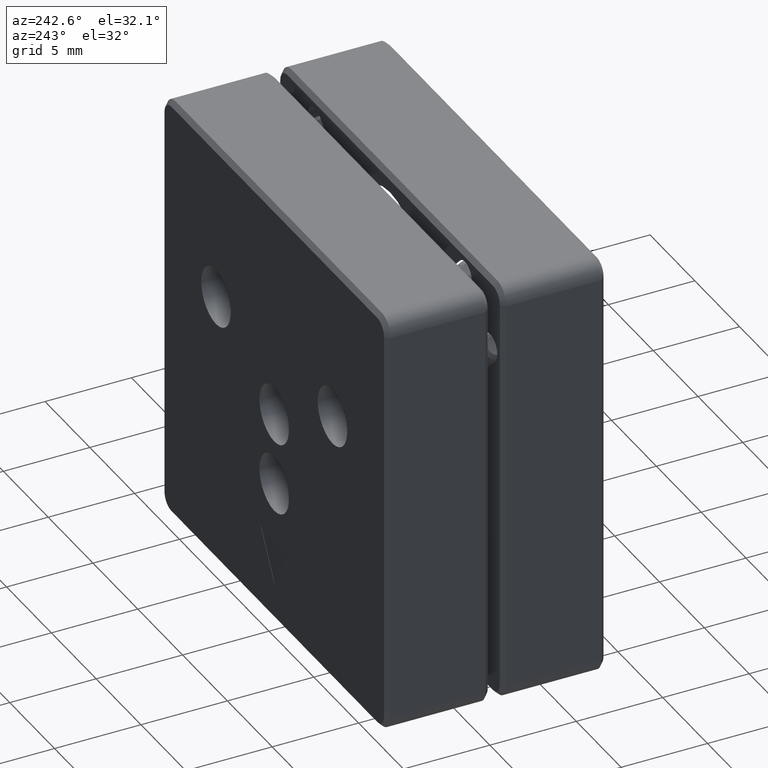
[diagram: clean part render]
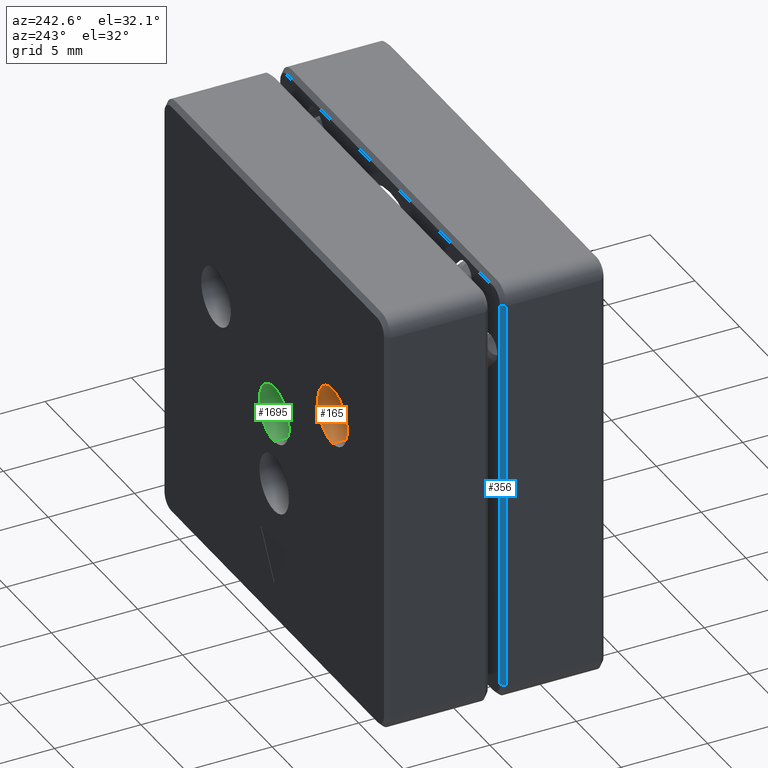
[diagram: same view with three faces highlighted in distinct colors, each labeled with its STEP entity id]
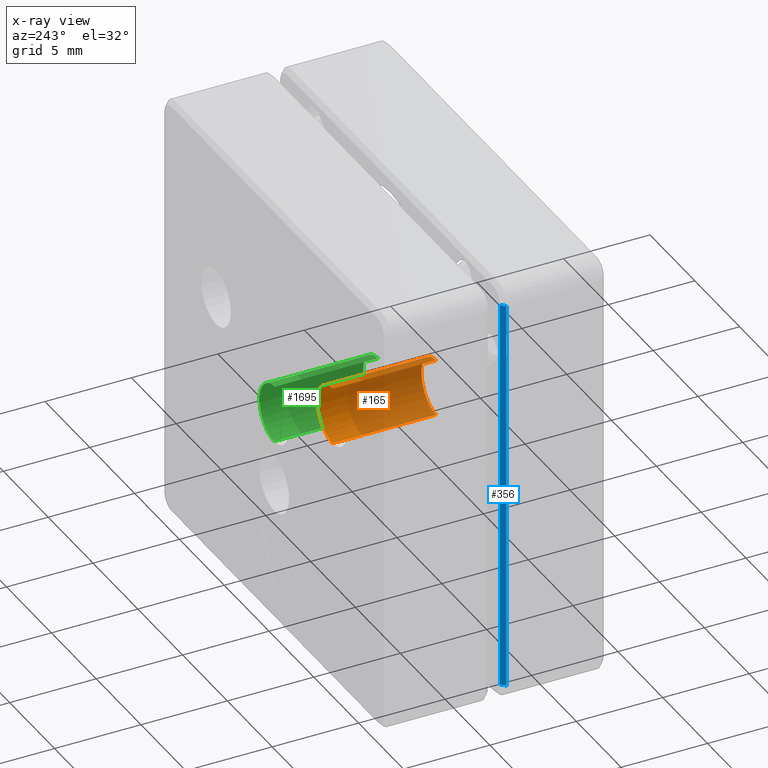
[diagram: x-ray of the same camera — body ghosted, the three highlighted faces saturated]
A machine part, auxiliary view with three faces highlighted in distinct colors.
The next image is the same camera in x-ray (body ghosted, the three faces saturated) — at least one of them is partly hidden behind the body in this view.
Their STEP definitions:

[orange] entity #165 — the highlighted cylindrical surface (edge-blend (fillet) strip) has radius 1.65 mm, axis along (-0, -1, 0).
#88 = ORIENTED_EDGE ( 'NONE', *, *, #2594, .T. ) ;
#165 = ADVANCED_FACE ( 'NONE', ( #2420 ), #1968, .F. ) ;
#211 = CARTESIAN_POINT ( 'NONE',  ( -6.499999999999986677, 3.699958608817712769, 5.149999999999989697 ) ) ;
#291 = CARTESIAN_POINT ( 'NONE',  ( -6.499999999999988454, 3.699958608817714101, 1.850000000000015188 ) ) ;
#360 = EDGE_CURVE ( 'NONE', #3007, #2559, #1805, .T. ) ;
#371 = AXIS2_PLACEMENT_3D ( 'NONE', #2798, #1793, #2523 ) ;
#665 = VECTOR ( 'NONE', #2702, 1000.000000000000000 ) ;
#727 = EDGE_CURVE ( 'NONE', #804, #2559, #2044, .T. ) ;
#804 = VERTEX_POINT ( 'NONE', #2006 ) ;
#1187 = DIRECTION ( 'NONE',  ( -6.706162754953245178E-19, -1.000000000000000000, 7.904105642296774844E-20 ) ) ;
#1209 = DIRECTION ( 'NONE',  ( -6.706162754953245178E-19, -1.000000000000000000, 7.904105642296774844E-20 ) ) ;
#1280 = AXIS2_PLACEMENT_3D ( 'NONE', #2238, #1187, #2160 ) ;
#1297 = DIRECTION ( 'NONE',  ( -6.706162754953245178E-19, -1.000000000000000000, 7.904105642296774844E-20 ) ) ;
#1331 = ORIENTED_EDGE ( 'NONE', *, *, #727, .F. ) ;
#1530 = AXIS2_PLACEMENT_3D ( 'NONE', #2330, #1297, #1590 ) ;
#1590 = DIRECTION ( 'NONE',  ( 5.256737805990365466E-16, 0.0000000000000000000, 1.000000000000000000 ) ) ;
#1600 = VECTOR ( 'NONE', #1209, 1000.000000000000000 ) ;
#1791 = VERTEX_POINT ( 'NONE', #2773 ) ;
#1793 = DIRECTION ( 'NONE',  ( -6.706162754953245178E-19, -1.000000000000000000, 7.904105642296774844E-20 ) ) ;
#1805 = CIRCLE ( 'NONE', #1530, 1.649999999999987033 ) ;
#1875 = LINE ( 'NONE', #291, #665 ) ;
#1968 = CYLINDRICAL_SURFACE ( 'NONE', #1280, 1.649999999999987033 ) ;
#1972 = CARTESIAN_POINT ( 'NONE',  ( -6.499999999999986677, 3.699958608817714101, 5.149999999999989697 ) ) ;
#2006 = CARTESIAN_POINT ( 'NONE',  ( -6.499999999999986677, 9.699958608817622618, 5.149999999999989697 ) ) ;
#2044 = LINE ( 'NONE', #1972, #1600 ) ;
#2068 = CARTESIAN_POINT ( 'NONE',  ( -6.499999999999988454, 3.699958608817712769, 1.850000000000015188 ) ) ;
#2160 = DIRECTION ( 'NONE',  ( 5.256737805990365466E-16, 0.0000000000000000000, 1.000000000000000000 ) ) ;
#2207 = EDGE_CURVE ( 'NONE', #1791, #804, #3341, .T. ) ;
#2238 = CARTESIAN_POINT ( 'NONE',  ( -6.499999999999987566, 3.699958608817714101, 3.500000000000002665 ) ) ;
#2330 = CARTESIAN_POINT ( 'NONE',  ( -6.499999999999987566, 3.699958608817712769, 3.500000000000002665 ) ) ;
#2420 = FACE_OUTER_BOUND ( 'NONE', #2479, .T. ) ;
#2427 = ORIENTED_EDGE ( 'NONE', *, *, #2207, .F. ) ;
#2479 = EDGE_LOOP ( 'NONE', ( #2427, #88, #2863, #1331 ) ) ;
#2523 = DIRECTION ( 'NONE',  ( 5.256737805990365466E-16, 0.0000000000000000000, 1.000000000000000000 ) ) ;
#2559 = VERTEX_POINT ( 'NONE', #211 ) ;
#2594 = EDGE_CURVE ( 'NONE', #1791, #3007, #1875, .T. ) ;
#2702 = DIRECTION ( 'NONE',  ( -6.706162754953245178E-19, -1.000000000000000000, 7.904105642296774844E-20 ) ) ;
#2773 = CARTESIAN_POINT ( 'NONE',  ( -6.499999999999988454, 9.699958608817622618, 1.850000000000015188 ) ) ;
#2798 = CARTESIAN_POINT ( 'NONE',  ( -6.499999999999987566, 9.699958608817622618, 3.500000000000002665 ) ) ;
#2863 = ORIENTED_EDGE ( 'NONE', *, *, #360, .T. ) ;
#3007 = VERTEX_POINT ( 'NONE', #2068 ) ;
#3341 = CIRCLE ( 'NONE', #371, 1.649999999999987033 ) ;

[blue] entity #356 — the highlighted planar face has unit normal (-0.7071, 0.7071, 0).
#170 = CARTESIAN_POINT ( 'NONE',  ( -12.24999999999999467, 3.000000000000000000, -11.50000000000000000 ) ) ;
#356 = ADVANCED_FACE ( 'NONE', ( #1602 ), #1543, .T. ) ;
#386 = VERTEX_POINT ( 'NONE', #1033 ) ;
#764 = DIRECTION ( 'NONE',  ( -0.7071067811865475727, 0.7071067811865475727, 9.813077866773593251E-17 ) ) ;
#790 = LINE ( 'NONE', #862, #2917 ) ;
#862 = CARTESIAN_POINT ( 'NONE',  ( -12.24999999999999289, 3.000000000000000000, 11.50000000000000178 ) ) ;
#955 = VECTOR ( 'NONE', #1644, 1000.000000000000000 ) ;
#977 = DIRECTION ( 'NONE',  ( -0.7071067811865500152, -0.7071067811865451302, 0.0000000000000000000 ) ) ;
#985 = ORIENTED_EDGE ( 'NONE', *, *, #1287, .T. ) ;
#998 = CARTESIAN_POINT ( 'NONE',  ( -12.24999999999999467, 3.000000000000000000, 1.700029006457269966E-15 ) ) ;
#1033 = CARTESIAN_POINT ( 'NONE',  ( -12.49999999999999645, 2.750000000000000000, -11.50000000000000000 ) ) ;
#1060 = CARTESIAN_POINT ( 'NONE',  ( -12.24999999999999289, 3.000000000000000000, 11.50000000000000178 ) ) ;
#1136 = DIRECTION ( 'NONE',  ( -1.387778780781445429E-16, 0.0000000000000000000, -1.000000000000000000 ) ) ;
#1251 = VERTEX_POINT ( 'NONE', #1434 ) ;
#1273 = CARTESIAN_POINT ( 'NONE',  ( -12.24999999999999289, 3.000000000000000000, 11.50000000000000178 ) ) ;
#1282 = ORIENTED_EDGE ( 'NONE', *, *, #2607, .F. ) ;
#1287 = EDGE_CURVE ( 'NONE', #1251, #386, #1423, .T. ) ;
#1291 = ORIENTED_EDGE ( 'NONE', *, *, #1659, .F. ) ;
#1308 = DIRECTION ( 'NONE',  ( -1.387778780781445429E-16, 0.0000000000000000000, -1.000000000000000000 ) ) ;
#1326 = VERTEX_POINT ( 'NONE', #1273 ) ;
#1362 = VERTEX_POINT ( 'NONE', #3138 ) ;
#1423 = LINE ( 'NONE', #170, #2000 ) ;
#1434 = CARTESIAN_POINT ( 'NONE',  ( -12.24999999999999467, 3.000000000000000000, -11.50000000000000000 ) ) ;
#1442 = DIRECTION ( 'NONE',  ( -0.7071067811865474617, -0.7071067811865474617, 0.0000000000000000000 ) ) ;
#1543 = PLANE ( 'NONE',  #2881 ) ;
#1602 = FACE_OUTER_BOUND ( 'NONE', #1848, .T. ) ;
#1644 = DIRECTION ( 'NONE',  ( 1.387778780781445429E-16, 0.0000000000000000000, 1.000000000000000000 ) ) ;
#1659 = EDGE_CURVE ( 'NONE', #1362, #386, #2673, .T. ) ;
#1711 = ORIENTED_EDGE ( 'NONE', *, *, #1724, .F. ) ;
#1724 = EDGE_CURVE ( 'NONE', #1326, #1362, #790, .T. ) ;
#1848 = EDGE_LOOP ( 'NONE', ( #985, #1291, #1711, #1282 ) ) ;
#2000 = VECTOR ( 'NONE', #977, 1000.000000000000114 ) ;
#2488 = CARTESIAN_POINT ( 'NONE',  ( -12.49999999999999645, 2.750000000000000000, -11.50000000000000000 ) ) ;
#2607 = EDGE_CURVE ( 'NONE', #1251, #1326, #3421, .T. ) ;
#2673 = LINE ( 'NONE', #2488, #3214 ) ;
#2881 = AXIS2_PLACEMENT_3D ( 'NONE', #998, #764, #1308 ) ;
#2917 = VECTOR ( 'NONE', #1442, 1000.000000000000114 ) ;
#3138 = CARTESIAN_POINT ( 'NONE',  ( -12.49999999999999289, 2.750000000000000000, 11.50000000000000178 ) ) ;
#3214 = VECTOR ( 'NONE', #1136, 1000.000000000000000 ) ;
#3421 = LINE ( 'NONE', #1060, #955 ) ;

[green] entity #1695 — the highlighted cylindrical surface (edge-blend (fillet) strip) has radius 1.65 mm, axis along (-0, -1, 0).
#228 = EDGE_CURVE ( 'NONE', #283, #2669, #300, .T. ) ;
#283 = VERTEX_POINT ( 'NONE', #3372 ) ;
#300 = CIRCLE ( 'NONE', #674, 1.649999999999999023 ) ;
#402 = AXIS2_PLACEMENT_3D ( 'NONE', #2235, #661, #2541 ) ;
#572 = CARTESIAN_POINT ( 'NONE',  ( 1.213810349481813988E-14, 3.699958608817714101, 1.649999999999999023 ) ) ;
#655 = VERTEX_POINT ( 'NONE', #2170 ) ;
#658 = ORIENTED_EDGE ( 'NONE', *, *, #693, .T. ) ;
#661 = DIRECTION ( 'NONE',  ( -6.706162754953245178E-19, -1.000000000000000000, 7.904105642296774844E-20 ) ) ;
#674 = AXIS2_PLACEMENT_3D ( 'NONE', #1487, #3073, #678 ) ;
#678 = DIRECTION ( 'NONE',  ( 4.060337135958214105E-16, 0.0000000000000000000, 1.000000000000000000 ) ) ;
#693 = EDGE_CURVE ( 'NONE', #655, #283, #2459, .T. ) ;
#757 = EDGE_CURVE ( 'NONE', #655, #1527, #2374, .T. ) ;
#775 = ORIENTED_EDGE ( 'NONE', *, *, #228, .T. ) ;
#793 = VECTOR ( 'NONE', #1889, 1000.000000000000000 ) ;
#864 = EDGE_CURVE ( 'NONE', #1527, #2669, #3001, .T. ) ;
#1124 = DIRECTION ( 'NONE',  ( -6.706162754953245178E-19, -1.000000000000000000, 7.904105642296774844E-20 ) ) ;
#1160 = CARTESIAN_POINT ( 'NONE',  ( 1.059612551809261844E-14, 3.699958608817714101, -1.649999999999998579 ) ) ;
#1238 = ORIENTED_EDGE ( 'NONE', *, *, #864, .F. ) ;
#1487 = CARTESIAN_POINT ( 'NONE',  ( 1.146814786738503455E-14, 3.699958608817714101, 2.371231692689009342E-19 ) ) ;
#1518 = VECTOR ( 'NONE', #1124, 1000.000000000000000 ) ;
#1527 = VERTEX_POINT ( 'NONE', #2144 ) ;
#1695 = ADVANCED_FACE ( 'NONE', ( #3300 ), #2584, .F. ) ;
#1701 = DIRECTION ( 'NONE',  ( 4.060337135958215091E-16, 0.0000000000000000000, 1.000000000000000000 ) ) ;
#1889 = DIRECTION ( 'NONE',  ( -6.706162754953245178E-19, -1.000000000000000000, 7.904105642296774844E-20 ) ) ;
#2128 = CARTESIAN_POINT ( 'NONE',  ( 1.213810349481813988E-14, 3.699958608817714101, 1.649999999999998579 ) ) ;
#2144 = CARTESIAN_POINT ( 'NONE',  ( 1.214212719247105439E-14, 9.699958608817617289, 1.649999999999998357 ) ) ;
#2170 = CARTESIAN_POINT ( 'NONE',  ( 1.059813736691910330E-14, 9.699958608817617289, -1.649999999999998357 ) ) ;
#2235 = CARTESIAN_POINT ( 'NONE',  ( 1.147217156503794906E-14, 9.699958608817617289, -2.371231692688979971E-19 ) ) ;
#2374 = CIRCLE ( 'NONE', #402, 1.649999999999998357 ) ;
#2457 = DIRECTION ( 'NONE',  ( -6.706162754953245178E-19, -1.000000000000000000, 7.904105642296774844E-20 ) ) ;
#2459 = LINE ( 'NONE', #1160, #1518 ) ;
#2541 = DIRECTION ( 'NONE',  ( 4.060337135958215584E-16, 0.0000000000000000000, 1.000000000000000000 ) ) ;
#2584 = CYLINDRICAL_SURFACE ( 'NONE', #3058, 1.649999999999998579 ) ;
#2669 = VERTEX_POINT ( 'NONE', #572 ) ;
#2850 = ORIENTED_EDGE ( 'NONE', *, *, #757, .F. ) ;
#3001 = LINE ( 'NONE', #2128, #793 ) ;
#3036 = EDGE_LOOP ( 'NONE', ( #2850, #658, #775, #1238 ) ) ;
#3058 = AXIS2_PLACEMENT_3D ( 'NONE', #3297, #2457, #1701 ) ;
#3073 = DIRECTION ( 'NONE',  ( -6.706162754953245178E-19, -1.000000000000000000, 7.904105642296774844E-20 ) ) ;
#3297 = CARTESIAN_POINT ( 'NONE',  ( 1.146814786738503455E-14, 3.699958608817714101, 2.371231692689009342E-19 ) ) ;
#3300 = FACE_OUTER_BOUND ( 'NONE', #3036, .T. ) ;
#3372 = CARTESIAN_POINT ( 'NONE',  ( 1.059813736691910330E-14, 3.699958608817714101, -1.649999999999999023 ) ) ;